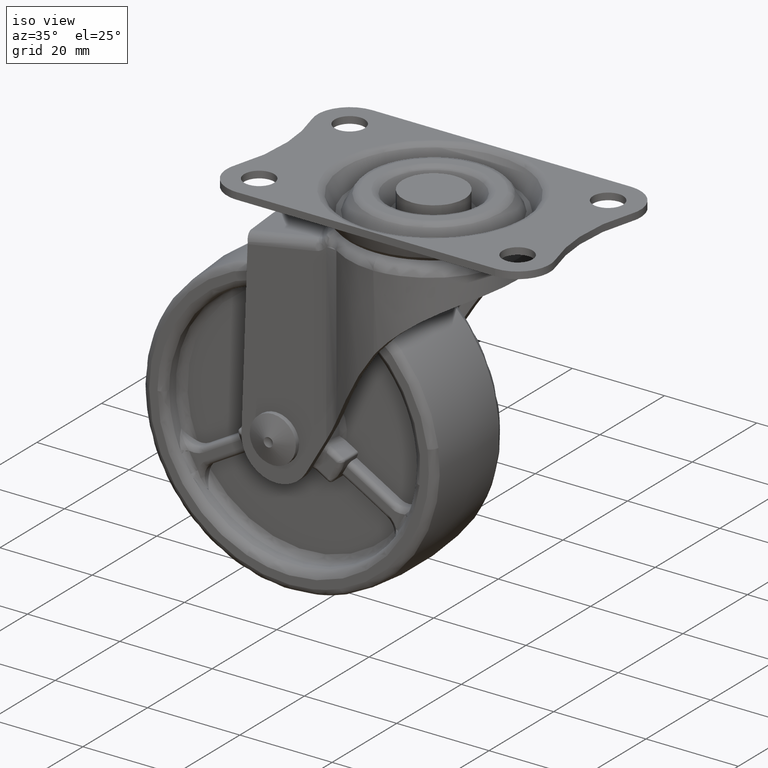
[diagram: clean part render]
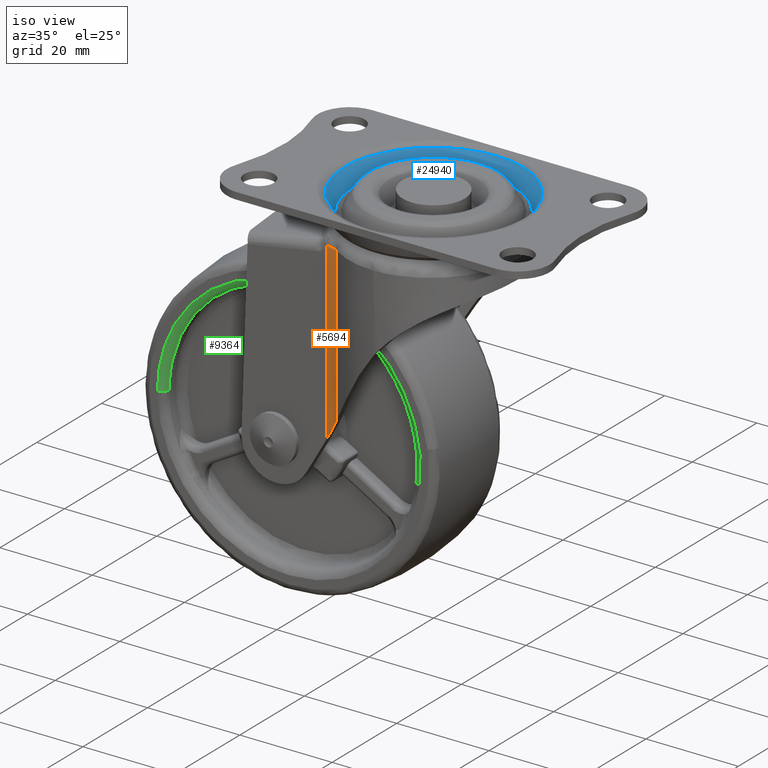
[diagram: same view with three faces highlighted in distinct colors, each labeled with its STEP entity id]
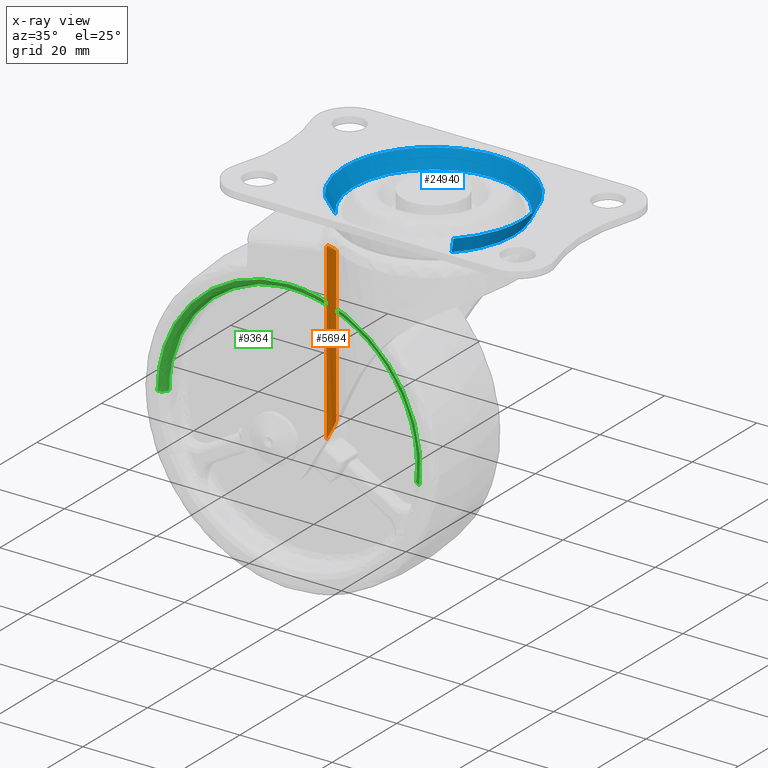
[diagram: x-ray of the same camera — body ghosted, the three highlighted faces saturated]
A machine part, iso view with three faces highlighted in distinct colors.
The next image is the same camera in x-ray (body ghosted, the three faces saturated) — at least one of them is partly hidden behind the body in this view.
Their STEP definitions:

[orange] entity #5694 — the highlighted face is a freeform B-spline surface patch.
#3430=CARTESIAN_POINT('',(-12.856621413632819,-14.506687415210759,-7.399998799999970));
#3431=VERTEX_POINT('',#3430);
#3517=CARTESIAN_POINT('',(-13.114845407450700,-14.500014999999960,-7.772795096158580));
#3518=VERTEX_POINT('',#3517);
#3528=CARTESIAN_POINT('',(-12.856621413632819,-14.506687415210759,-7.399998799999970));
#3529=CARTESIAN_POINT('',(-12.943908538273410,-14.502194692287571,-7.523361580768666));
#3530=CARTESIAN_POINT('',(-13.030004354862291,-14.499970000490400,-7.647657541697311));
#3531=CARTESIAN_POINT('',(-13.114845407450700,-14.500014999999960,-7.772795096158580));
#3532=B_SPLINE_CURVE_WITH_KNOTS('',3,(#3528,#3529,#3530,#3531),.UNSPECIFIED.,.F.,.U.,(4,4),(3.120049E-011,0.453569087634963),.UNSPECIFIED.);
#3533=EDGE_CURVE('',#3431,#3518,#3532,.T.);
#4497=CARTESIAN_POINT('',(-10.324452148758301,-15.351074718211850,-7.399998799999970));
#4498=VERTEX_POINT('',#4497);
#4499=CARTESIAN_POINT('',(-10.324452148758301,-15.351074718211850,-7.399998799999970));
#4500=CARTESIAN_POINT('',(-10.674724131833370,-15.115354828179170,-7.399998799999970));
#4501=CARTESIAN_POINT('',(-11.486159627630560,-14.708090114520440,-7.399998799999984));
#4502=CARTESIAN_POINT('',(-12.378751539321350,-14.531207283761750,-7.399998799999974));
#4503=CARTESIAN_POINT('',(-12.856621413632819,-14.506687415210759,-7.399998799999970));
#4504=B_SPLINE_CURVE_WITH_KNOTS('',3,(#4499,#4500,#4501,#4502,#4503),.UNSPECIFIED.,.F.,.U.,(4,1,4),(0.000000019463445,1.266589269198385,2.702035801086704),.UNSPECIFIED.);
#4505=EDGE_CURVE('',#4498,#3431,#4504,.T.);
#5649=CARTESIAN_POINT('',(-13.252444837934910,-14.501908718944060,-46.517800466639272));
#5650=CARTESIAN_POINT('',(-13.252444837934910,-14.501908718944060,-6.422053758333988));
#5651=CARTESIAN_POINT('',(-11.571720338933032,-14.455637847366139,-46.517800466639272));
#5652=CARTESIAN_POINT('',(-11.571720338933032,-14.455637847366139,-6.422053758333988));
#5653=CARTESIAN_POINT('',(-10.204531691264046,-15.434295620434286,-46.517800466639272));
#5654=CARTESIAN_POINT('',(-10.204531691264046,-15.434295620434286,-6.422053758333988));
#5662=(BOUNDED_SURFACE()B_SPLINE_SURFACE(1,2,((#5649,#5651,#5653),(#5650,#5652,#5654)),.UNSPECIFIED.,.F.,.F.,.U.)B_SPLINE_SURFACE_WITH_KNOTS((2,2),(3,3),(0.0,40.095746708305278),(0.0,3.272668256991335),.UNSPECIFIED.)GEOMETRIC_REPRESENTATION_ITEM()RATIONAL_B_SPLINE_SURFACE(((1.0,0.944025096349124,0.991957538020021),(1.0,0.944025096349124,0.991957538020021)))REPRESENTATION_ITEM('')SURFACE());
#5663=ORIENTED_EDGE('',*,*,#4505,.T.);
#5664=ORIENTED_EDGE('',*,*,#3533,.T.);
#5665=CARTESIAN_POINT('',(-13.114845407450780,-14.500014999999960,-45.563707743062693));
#5666=VERTEX_POINT('',#5665);
#5667=CARTESIAN_POINT('',(-13.114845407450780,-14.500014999999960,-45.563707743062693));
#5668=CARTESIAN_POINT('',(-13.114845407450700,-14.500014999999960,-7.772795096158580));
#5669=QUASI_UNIFORM_CURVE('',1,(#5667,#5668),.UNSPECIFIED.,.F.,.U.);
#5670=EDGE_CURVE('',#5666,#3518,#5669,.T.);
#5671=ORIENTED_EDGE('',*,*,#5670,.F.);
#5672=CARTESIAN_POINT('',(-10.324452148758320,-15.351074718211850,-40.741636829355500));
#5673=VERTEX_POINT('',#5672);
#5674=CARTESIAN_POINT('',(-10.324452148758290,-15.351074718211850,-40.741636829355421));
#5675=CARTESIAN_POINT('',(-11.589863730476058,-14.500014999999955,-42.928391102453411));
#5676=CARTESIAN_POINT('',(-13.114845407450760,-14.500014999999950,-45.563707743062700));
#5684=(BOUNDED_CURVE()B_SPLINE_CURVE(2,(#5674,#5675,#5676),.UNSPECIFIED.,.F.,.U.)CURVE()GEOMETRIC_REPRESENTATION_ITEM()QUASI_UNIFORM_CURVE()RATIONAL_B_SPLINE_CURVE((1.0,0.956500929523270,1.0))REPRESENTATION_ITEM(''));
#5685=EDGE_CURVE('',#5673,#5666,#5684,.T.);
#5686=ORIENTED_EDGE('',*,*,#5685,.F.);
#5687=CARTESIAN_POINT('',(-10.324452148758301,-15.351074718211850,-7.399998799999970));
#5688=CARTESIAN_POINT('',(-10.324452148758320,-15.351074718211850,-40.741636829355500));
#5689=QUASI_UNIFORM_CURVE('',1,(#5687,#5688),.UNSPECIFIED.,.F.,.U.);
#5690=EDGE_CURVE('',#4498,#5673,#5689,.T.);
#5691=ORIENTED_EDGE('',*,*,#5690,.F.);
#5692=EDGE_LOOP('',(#5663,#5664,#5671,#5686,#5691));
#5693=FACE_OUTER_BOUND('',#5692,.T.);
#5694=ADVANCED_FACE('',(#5693),#5662,.F.);

[blue] entity #24940 — the highlighted face is a freeform B-spline surface patch.
#24721=CARTESIAN_POINT('',(-15.104328417027910,-12.139677728224720,0.707998363392648));
#24722=VERTEX_POINT('',#24721);
#24737=CARTESIAN_POINT('',(13.802493565725589,-13.601607415630211,0.707998720287982));
#24738=VERTEX_POINT('',#24737);
#24750=CARTESIAN_POINT('',(12.464743854447960,-12.283327765179530,-2.799999431702651));
#24751=VERTEX_POINT('',#24750);
#24752=CARTESIAN_POINT('',(12.464743854447960,-12.283327765179530,-2.799999431702651));
#24753=CARTESIAN_POINT('',(13.802493565725589,-13.601607415630211,0.707998720287982));
#24754=QUASI_UNIFORM_CURVE('',1,(#24752,#24753),.UNSPECIFIED.,.F.,.U.);
#24755=EDGE_CURVE('',#24751,#24738,#24754,.T.);
#24770=CARTESIAN_POINT('',(-13.640405340366071,-10.963090866570431,-2.799999053926725));
#24771=VERTEX_POINT('',#24770);
#24783=CARTESIAN_POINT('',(-13.640405340366071,-10.963090866570431,-2.799999053926725));
#24784=CARTESIAN_POINT('',(-15.104328417027910,-12.139677728224720,0.707998363392648));
#24785=QUASI_UNIFORM_CURVE('',1,(#24783,#24784),.UNSPECIFIED.,.F.,.U.);
#24786=EDGE_CURVE('',#24771,#24722,#24785,.T.);
#24791=CARTESIAN_POINT('',(12.431300531040490,-12.250371187189080,-2.887699185328173));
#24792=CARTESIAN_POINT('',(24.681671718229573,0.180929343851407,-2.887699185328173));
#24793=CARTESIAN_POINT('',(12.250371187189080,12.431300531040490,-2.887699185328173));
#24794=CARTESIAN_POINT('',(-0.180929343851407,24.681671718229573,-2.887699185328173));
#24795=CARTESIAN_POINT('',(-12.431300531040490,12.250371187189080,-2.887699185328173));
#24796=CARTESIAN_POINT('',(-23.340154405281869,1.180401233811951,-2.887699185328174));
#24797=CARTESIAN_POINT('',(-13.603806815022173,-10.933675834618315,-2.887699185328173));
#24798=CARTESIAN_POINT('',(13.836773007866110,-13.635387943199470,0.797890992372309));
#24799=CARTESIAN_POINT('',(27.472160951065586,0.201385064666644,0.797890992372309));
#24800=CARTESIAN_POINT('',(13.635387943199470,13.836773007866110,0.797890992372309));
#24801=CARTESIAN_POINT('',(-0.201385064666644,27.472160951065586,0.797890992372309));
#24802=CARTESIAN_POINT('',(-13.836773007866110,13.635387943199470,0.797890992372309));
#24803=CARTESIAN_POINT('',(-25.978972808841011,1.313856413468431,0.797890992372309));
#24804=CARTESIAN_POINT('',(-15.141841875056736,-12.169828111503477,0.797890992372309));
#24812=(BOUNDED_SURFACE()B_SPLINE_SURFACE(2,1,((#24791,#24798),(#24792,#24799),(#24793,#24800),(#24794,#24801),(#24795,#24802),(#24796,#24803),(#24797,#24804)),.UNSPECIFIED.,.F.,.F.,.U.)B_SPLINE_SURFACE_WITH_KNOTS((3,2,2,3),(2,2),(0.0,32.186503354040603,64.373006708081206,93.984589793798563),(0.0,4.180574034209438),.UNSPECIFIED.)GEOMETRIC_REPRESENTATION_ITEM()RATIONAL_B_SPLINE_SURFACE(((1.0,1.0),(0.707106781186548,0.707106781186548),(1.0,1.0),(0.707106781186548,0.707106781186548),(1.0,1.0),(0.730538238691624,0.730538238691624),(0.956886118190660,0.956886118190660)))REPRESENTATION_ITEM('')SURFACE());
#24813=CARTESIAN_POINT('',(-19.378145740966652,0.0,0.707998539736828));
#24814=VERTEX_POINT('',#24813);
#24815=CARTESIAN_POINT('',(-19.378145740966652,0.0,0.707998539736828));
#24816=CARTESIAN_POINT('',(-19.378616331210129,-1.639951559914560,0.707998515914459));
#24817=CARTESIAN_POINT('',(-19.063945254704279,-4.099518370456845,0.707998480186134));
#24818=CARTESIAN_POINT('',(-17.974231453505858,-7.416964512665175,0.707998431996033));
#24819=CARTESIAN_POINT('',(-16.756660922503560,-9.873528453285079,0.707998396311338));
#24820=CARTESIAN_POINT('',(-15.660821363972220,-11.447328138598960,0.707998373449898));
#24821=CARTESIAN_POINT('',(-15.104328417027910,-12.139677728224720,0.707998363392648));
#24822=B_SPLINE_CURVE_WITH_KNOTS('',3,(#24815,#24816,#24817,#24818,#24819,#24820,#24821),.UNSPECIFIED.,.F.,.U.,(4,1,1,1,4),(3.752756E-009,4.919696950827384,7.379541211172215,10.454351369702160,13.119185879679970),.UNSPECIFIED.);
#24823=EDGE_CURVE('',#24814,#24722,#24822,.T.);
#24824=ORIENTED_EDGE('',*,*,#24823,.T.);
#24825=ORIENTED_EDGE('',*,*,#24786,.F.);
#24826=CARTESIAN_POINT('',(-17.500000000000000,0.0,-2.799999240588125));
#24827=VERTEX_POINT('',#24826);
#24828=CARTESIAN_POINT('',(-13.640405340366071,-10.963090866570431,-2.799999053926725));
#24829=CARTESIAN_POINT('',(-14.452398126520549,-9.953180646607011,-2.799999071121810));
#24830=CARTESIAN_POINT('',(-15.550674291420499,-8.223557438266639,-2.799999100570966));
#24831=CARTESIAN_POINT('',(-16.612018596304861,-5.651537511246543,-2.799999144363087));
#24832=CARTESIAN_POINT('',(-17.306996619265931,-3.085257410941046,-2.799999188057450));
#24833=CARTESIAN_POINT('',(-17.500175005860470,-1.172435854270031,-2.799999220625823));
#24834=CARTESIAN_POINT('',(-17.500000000000000,0.0,-2.799999240588125));
#24835=B_SPLINE_CURVE_WITH_KNOTS('',3,(#24828,#24829,#24830,#24831,#24832,#24833,#24834),.UNSPECIFIED.,.F.,.U.,(4,1,1,1,4),(8.888920E-009,3.887521073140568,6.108946807995011,8.330386160695442,11.847663993817431),.UNSPECIFIED.);
#24836=EDGE_CURVE('',#24771,#24827,#24835,.T.);
#24837=ORIENTED_EDGE('',*,*,#24836,.T.);
#24838=CARTESIAN_POINT('',(0.000001837333620,17.499999999999901,-2.799999240588125));
#24839=VERTEX_POINT('',#24838);
#24840=CARTESIAN_POINT('',(-17.500000000000000,0.0,-2.799999240588125));
#24841=CARTESIAN_POINT('',(-17.500046359620370,0.930612802149088,-2.799999240588125));
#24842=CARTESIAN_POINT('',(-17.339797275881480,2.935003209018313,-2.799999240588139));
#24843=CARTESIAN_POINT('',(-16.588266691050130,5.859350387421767,-2.799999240588089));
#24844=CARTESIAN_POINT('',(-15.421262871854751,8.406954515462356,-2.799999240588178));
#24845=CARTESIAN_POINT('',(-14.032757998972720,10.541121547264121,-2.799999240588084));
#24846=CARTESIAN_POINT('',(-12.187975910621470,12.693430155796889,-2.799999240588151));
#24847=CARTESIAN_POINT('',(-10.033762763770889,14.439255206798091,-2.799999240588116));
#24848=CARTESIAN_POINT('',(-7.320135107316806,15.976455525804941,-2.799999240588131));
#24849=CARTESIAN_POINT('',(-4.187600610050672,17.151905656414002,-2.799999240588109));
#24850=CARTESIAN_POINT('',(-1.503329929842773,17.500443946176802,-2.799999240588138));
#24851=CARTESIAN_POINT('',(0.000001837333620,17.499999999999901,-2.799999240588125));
#24852=B_SPLINE_CURVE_WITH_KNOTS('',3,(#24840,#24841,#24842,#24843,#24844,#24845,#24846,#24847,#24848,#24849,#24850,#24851),.UNSPECIFIED.,.F.,.U.,(4,1,1,1,1,1,1,1,1,4),(0.000000082032606,2.791838492949619,6.013209610348039,9.019838783958289,11.167431146716710,13.637160687836699,17.502727796870929,19.435565645863800,22.979076413245600,27.488979876628449),.UNSPECIFIED.);
#24853=EDGE_CURVE('',#24827,#24839,#24852,.T.);
#24854=ORIENTED_EDGE('',*,*,#24853,.T.);
#24855=CARTESIAN_POINT('',(17.500000000000000,0.0,-2.799999240588125));
#24856=VERTEX_POINT('',#24855);
#24857=CARTESIAN_POINT('',(0.000001837333620,17.499999999999901,-2.799999240588125));
#24858=CARTESIAN_POINT('',(1.395963864026903,17.500359706844598,-2.799999240588105));
#24859=CARTESIAN_POINT('',(3.400179469265473,17.258822531204729,-2.799999240588145));
#24860=CARTESIAN_POINT('',(6.558623594576914,16.311395052113880,-2.799999240588134));
#24861=CARTESIAN_POINT('',(8.953446462092105,15.142602833219611,-2.799999240588059));
#24862=CARTESIAN_POINT('',(11.099638189685830,13.580959511700559,-2.799999240588226));
#24863=CARTESIAN_POINT('',(12.811406213264281,12.000664510486271,-2.799999240588043));
#24864=CARTESIAN_POINT('',(14.366553126378911,10.117549410397780,-2.799999240588036));
#24865=CARTESIAN_POINT('',(15.900627874071400,7.522242779609292,-2.799999240588289));
#24866=CARTESIAN_POINT('',(17.151943453209888,4.187610254164214,-2.799999240587977));
#24867=CARTESIAN_POINT('',(17.500408680199040,1.503326823517029,-2.799999240588146));
#24868=CARTESIAN_POINT('',(17.500000000000000,0.0,-2.799999240588125));
#24869=B_SPLINE_CURVE_WITH_KNOTS('',3,(#24857,#24858,#24859,#24860,#24861,#24862,#24863,#24864,#24865,#24866,#24867,#24868),.UNSPECIFIED.,.F.,.U.,(4,1,1,1,1,1,1,1,1,4),(0.000000082226379,4.187767354986143,6.013209157432236,9.878855871634336,12.133846355387041,13.959225159875920,16.858470608468060,19.435564181194611,22.979074681460670,27.488977805521952),.UNSPECIFIED.);
#24870=EDGE_CURVE('',#24839,#24856,#24869,.T.);
#24871=ORIENTED_EDGE('',*,*,#24870,.T.);
#24872=CARTESIAN_POINT('',(17.500000000000000,0.0,-2.799999240588125));
#24873=CARTESIAN_POINT('',(17.500256710650550,-1.311997290656933,-2.799999261001310));
#24874=CARTESIAN_POINT('',(17.211564291221531,-3.864932878752649,-2.799999300722047));
#24875=CARTESIAN_POINT('',(16.121328909097869,-7.034679778269851,-2.799999350039696));
#24876=CARTESIAN_POINT('',(14.557894490602511,-9.865664424736261,-2.799999394086580));
#24877=CARTESIAN_POINT('',(13.311109862536251,-11.424737821213480,-2.799999418343964));
#24878=CARTESIAN_POINT('',(12.464743854447960,-12.283327765179530,-2.799999431702651));
#24879=B_SPLINE_CURVE_WITH_KNOTS('',3,(#24872,#24873,#24874,#24875,#24876,#24877,#24878),.UNSPECIFIED.,.F.,.U.,(4,1,1,1,4),(0.000000021402025,3.935938686540586,7.659100215388850,9.999401445304139,13.616206904051060),.UNSPECIFIED.);
#24880=EDGE_CURVE('',#24856,#24751,#24879,.T.);
#24881=ORIENTED_EDGE('',*,*,#24880,.T.);
#24882=ORIENTED_EDGE('',*,*,#24755,.T.);
#24883=CARTESIAN_POINT('',(19.378145740966652,0.0,0.707998539736828));
#24884=VERTEX_POINT('',#24883);
#24885=CARTESIAN_POINT('',(13.802493565725589,-13.601607415630211,0.707998720287982));
#24886=CARTESIAN_POINT('',(14.739700239411640,-12.650871857469140,0.707998707667680));
#24887=CARTESIAN_POINT('',(15.997016745252189,-11.078617073427189,0.707998686797174));
#24888=CARTESIAN_POINT('',(17.422419977118871,-8.587448186236497,0.707998653728774));
#24889=CARTESIAN_POINT('',(18.267625201094059,-6.594942177661383,0.707998627279747));
#24890=CARTESIAN_POINT('',(19.120774465298460,-3.690712522483124,0.707998588728274));
#24891=CARTESIAN_POINT('',(19.378538743225690,-1.531356491750213,0.707998560064437));
#24892=CARTESIAN_POINT('',(19.378145740966652,0.0,0.707998539736828));
#24893=B_SPLINE_CURVE_WITH_KNOTS('',3,(#24885,#24886,#24887,#24888,#24889,#24890,#24891,#24892),.UNSPECIFIED.,.F.,.U.,(4,1,1,1,1,4),(0.000000020944192,4.004970966987571,6.007469519643708,8.598900397478488,10.483596482045391,15.077534266959830),.UNSPECIFIED.);
#24894=EDGE_CURVE('',#24738,#24884,#24893,.T.);
#24895=ORIENTED_EDGE('',*,*,#24894,.T.);
#24896=CARTESIAN_POINT('',(7.086251074618428,18.036007824851559,0.707998549013760));
#24897=VERTEX_POINT('',#24896);
#24898=CARTESIAN_POINT('',(19.378145740966652,0.0,0.707998539736828));
#24899=CARTESIAN_POINT('',(19.378218624047800,1.026400436612047,0.707998539736773));
#24900=CARTESIAN_POINT('',(19.233860984177131,2.837664951431997,0.707998539845723));
#24901=CARTESIAN_POINT('',(18.561841436132401,5.848507173581801,0.707998540352909));
#24902=CARTESIAN_POINT('',(17.485561785782480,8.554336197207936,0.707998541165198));
#24903=CARTESIAN_POINT('',(15.706067485232721,11.508688247717560,0.707998542508218));
#24904=CARTESIAN_POINT('',(13.687512223747380,13.855444146658151,0.707998544031659));
#24905=CARTESIAN_POINT('',(10.740461951758141,16.275183910519431,0.707998546255856));
#24906=CARTESIAN_POINT('',(8.547509384357349,17.462306403102989,0.707998547910917));
#24907=CARTESIAN_POINT('',(7.086251074618428,18.036007824851559,0.707998549013760));
#24908=B_SPLINE_CURVE_WITH_KNOTS('',3,(#24898,#24899,#24900,#24901,#24902,#24903,#24904,#24905,#24906,#24907),.UNSPECIFIED.,.F.,.U.,(4,1,1,1,1,1,1,4),(0.000000033146520,3.079199834401475,5.433909892065064,9.237671885731128,11.773456252095791,15.758332712035941,18.475300162452989,23.184683460701478),.UNSPECIFIED.);
#24909=EDGE_CURVE('',#24884,#24897,#24908,.T.);
#24910=ORIENTED_EDGE('',*,*,#24909,.T.);
#24911=CARTESIAN_POINT('',(-17.097167974215381,9.121369399756141,0.707998544903165));
#24912=VERTEX_POINT('',#24911);
#24913=CARTESIAN_POINT('',(7.086251074618428,18.036007824851559,0.707998549013760));
#24914=CARTESIAN_POINT('',(5.787807117417134,18.546430189225148,0.707998547586514));
#24915=CARTESIAN_POINT('',(3.507621134831959,19.168159783960260,0.707998545415146));
#24916=CARTESIAN_POINT('',(0.462890265742807,19.425946872780500,0.707998543213974));
#24917=CARTESIAN_POINT('',(-2.071724301282061,19.315873286326461,0.707998541777673));
#24918=CARTESIAN_POINT('',(-4.249512311934508,18.951894040810600,0.707998540872188));
#24919=CARTESIAN_POINT('',(-6.579566270376746,18.276489488836280,0.707998540252292));
#24920=CARTESIAN_POINT('',(-9.086768043384788,17.212237507608691,0.707998539996927));
#24921=CARTESIAN_POINT('',(-11.548916071636050,15.656578232428499,0.707998540368985));
#24922=CARTESIAN_POINT('',(-13.767332241342420,13.722807409289530,0.707998541353286));
#24923=CARTESIAN_POINT('',(-15.582633266823580,11.642336449918860,0.707998542766380));
#24924=CARTESIAN_POINT('',(-16.630619366360850,9.995995483955010,0.707998544125308));
#24925=CARTESIAN_POINT('',(-17.097167974215381,9.121369399756141,0.707998544903165));
#24926=B_SPLINE_CURVE_WITH_KNOTS('',3,(#24913,#24914,#24915,#24916,#24917,#24918,#24919,#24920,#24921,#24922,#24923,#24924,#24925),.UNSPECIFIED.,.F.,.U.,(4,1,1,1,1,1,1,1,1,1,4),(0.000000066525210,4.185442290620706,7.049168691684717,9.141898536732558,11.785359722186371,13.657790816341331,16.411317022170230,19.935923495931220,22.359087098853639,25.222835310797841,28.196673707515579),.UNSPECIFIED.);
#24927=EDGE_CURVE('',#24897,#24912,#24926,.T.);
#24928=ORIENTED_EDGE('',*,*,#24927,.T.);
#24929=CARTESIAN_POINT('',(-17.097167974215381,9.121369399756141,0.707998544903165));
#24930=CARTESIAN_POINT('',(-17.539573710205119,8.292201415190105,0.707998543901132));
#24931=CARTESIAN_POINT('',(-18.323519492178072,6.524004710159906,0.707998542125520));
#24932=CARTESIAN_POINT('',(-19.164355575557099,3.462410453279461,0.707998540221057));
#24933=CARTESIAN_POINT('',(-19.378289968099558,1.236597033317873,0.707998539736500));
#24934=CARTESIAN_POINT('',(-19.378145740966652,0.0,0.707998539736828));
#24935=B_SPLINE_CURVE_WITH_KNOTS('',3,(#24929,#24930,#24931,#24932,#24933,#24934),.UNSPECIFIED.,.F.,.U.,(4,1,1,4),(8.702898E-009,2.819433133988910,5.787250571738325,9.497028690946026),.UNSPECIFIED.);
#24936=EDGE_CURVE('',#24912,#24814,#24935,.T.);
#24937=ORIENTED_EDGE('',*,*,#24936,.T.);
#24938=EDGE_LOOP('',(#24824,#24825,#24837,#24854,#24871,#24881,#24882,#24895,#24910,#24928,#24937));
#24939=FACE_OUTER_BOUND('',#24938,.T.);
#24940=ADVANCED_FACE('',(#24939),#24812,.F.);

[green] entity #9364 — the highlighted face is a freeform B-spline surface patch.
#9218=CARTESIAN_POINT('',(4.412712792368393,-10.496388482712499,-51.302734669569027));
#9219=CARTESIAN_POINT('',(4.604026481268000,-10.496388482712497,-49.656906331397060));
#9220=CARTESIAN_POINT('',(4.604026481268001,-10.496388482712499,-47.999996000000010));
#9221=CARTESIAN_POINT('',(4.604026481268005,-10.496388482712497,-19.395969518732016));
#9222=CARTESIAN_POINT('',(-24.0,-10.496388482712499,-19.395969518731999));
#9223=CARTESIAN_POINT('',(-52.604026481268001,-10.496388482712497,-19.395969518732002));
#9224=CARTESIAN_POINT('',(-52.604026481268001,-10.496388482712499,-47.999996000000003));
#9225=CARTESIAN_POINT('',(2.703585513134143,-10.616004249260582,-51.104063011653352));
#9226=CARTESIAN_POINT('',(2.883390992769161,-10.616004249260577,-49.557237191483161));
#9227=CARTESIAN_POINT('',(2.883390992769161,-10.616004249260580,-47.999996000000017));
#9228=CARTESIAN_POINT('',(2.883390992769166,-10.616004249260579,-21.116605007230852));
#9229=CARTESIAN_POINT('',(-23.999999999999989,-10.616004249260580,-21.116605007230838));
#9230=CARTESIAN_POINT('',(-50.883390992769158,-10.616004249260579,-21.116605007230834));
#9231=CARTESIAN_POINT('',(-50.883390992769165,-10.616004249260580,-47.999995999999996));
#9232=CARTESIAN_POINT('',(2.823040727230704,-8.895413636686925,-51.117948674657846));
#9233=CARTESIAN_POINT('',(3.003650544622349,-8.895413636686918,-49.564203318928378));
#9234=CARTESIAN_POINT('',(3.003650544622351,-8.895413636686921,-47.999996000000010));
#9235=CARTESIAN_POINT('',(3.003650544622353,-8.895413636686920,-20.996345455377668));
#9236=CARTESIAN_POINT('',(-23.999999999999996,-8.895413636686921,-20.996345455377657));
#9237=CARTESIAN_POINT('',(-51.003650544622346,-8.895413636686920,-20.996345455377636));
#9238=CARTESIAN_POINT('',(-51.003650544622353,-8.895413636686921,-47.999995999999989));
#9246=(BOUNDED_SURFACE()B_SPLINE_SURFACE(2,2,((#9218,#9225,#9232),(#9219,#9226,#9233),(#9220,#9227,#9234),(#9221,#9228,#9235),(#9222,#9229,#9236),(#9223,#9230,#9237),(#9224,#9231,#9238)),.UNSPECIFIED.,.F.,.F.,.U.)B_SPLINE_SURFACE_WITH_KNOTS((3,2,2,3),(3,3),(0.0,3.791412610470240,51.184115438551707,98.576818266633182),(0.0,2.733556342804873),.UNSPECIFIED.)GEOMETRIC_REPRESENTATION_ITEM()RATIONAL_B_SPLINE_SURFACE(((0.870831809919692,0.569876296320330,0.866007996426050),(0.888744147605105,0.581598211553931,0.883821111993890),(0.910068355261767,0.595552870011418,0.905027198103471),(0.643515505348883,0.421119472940184,0.639950868937225),(0.910068355261767,0.595552870011418,0.905027198103471),(0.643515505348883,0.421119472940184,0.639950868937225),(0.910068355261767,0.595552870011418,0.905027198103471)))REPRESENTATION_ITEM('')SURFACE());
#9247=CARTESIAN_POINT('',(4.309381704082955,-10.499999999999870,-51.290726535654841));
#9248=VERTEX_POINT('',#9247);
#9249=CARTESIAN_POINT('',(-24.0,-10.499999999999860,-19.499995999999999));
#9250=VERTEX_POINT('',#9249);
#9251=CARTESIAN_POINT('',(4.309381704082955,-10.499999999999870,-51.290726535654841));
#9252=CARTESIAN_POINT('',(4.562754093582614,-10.499999999999840,-49.114890927783769));
#9253=CARTESIAN_POINT('',(4.563598730918709,-10.499999999999950,-45.460801672558240));
#9254=CARTESIAN_POINT('',(3.635841636756370,-10.499999999999760,-40.653783437222224));
#9255=CARTESIAN_POINT('',(2.162997361936657,-10.499999999999901,-36.384715677575947));
#9256=CARTESIAN_POINT('',(0.256278765614224,-10.499999999999851,-32.841403460470872));
#9257=CARTESIAN_POINT('',(-2.283672832446797,-10.499999999999870,-29.420121721277258));
#9258=CARTESIAN_POINT('',(-4.767257672954857,-10.499999999999851,-26.843770744165010));
#9259=CARTESIAN_POINT('',(-7.775885941030682,-10.499999999999890,-24.482738520397611));
#9260=CARTESIAN_POINT('',(-10.513181211389570,-10.499999999999760,-22.828868653626369));
#9261=CARTESIAN_POINT('',(-13.354319270316720,-10.499999999999790,-21.509315854874480));
#9262=CARTESIAN_POINT('',(-16.435136816702620,-10.499999999999901,-20.444719304376370));
#9263=CARTESIAN_POINT('',(-20.057121890009910,-10.499999999999851,-19.682135824950748));
#9264=CARTESIAN_POINT('',(-22.685705033314932,-10.499999999999860,-19.499944133860240));
#9265=CARTESIAN_POINT('',(-24.0,-10.499999999999860,-19.499995999999999));
#9266=B_SPLINE_CURVE_WITH_KNOTS('',3,(#9251,#9252,#9253,#9254,#9255,#9256,#9257,#9258,#9259,#9260,#9261,#9262,#9263,#9264,#9265),.UNSPECIFIED.,.F.,.U.,(4,1,1,1,1,1,1,1,1,1,1,1,4),(0.000000071201974,6.571500145046379,10.889921867101460,14.645083189467110,20.090044845557362,22.906441718963752,27.412526125910141,30.792194787975038,34.359585410954978,36.988193631550402,40.180067459563297,44.122983706749807,48.065868984872537),.UNSPECIFIED.);
#9267=EDGE_CURVE('',#9248,#9250,#9266,.T.);
#9268=ORIENTED_EDGE('',*,*,#9267,.T.);
#9269=CARTESIAN_POINT('',(-52.499999997144222,-10.499999999999870,-47.999996000000003));
#9270=VERTEX_POINT('',#9269);
#9271=CARTESIAN_POINT('',(-24.0,-10.499999999999860,-19.499995999999999));
#9272=CARTESIAN_POINT('',(-25.515575800084068,-10.499999999999860,-19.499900577046500));
#9273=CARTESIAN_POINT('',(-28.255233663697911,-10.499999999999890,-19.719050243774092));
#9274=CARTESIAN_POINT('',(-31.957207799734629,-10.499999999999870,-20.562316351564771));
#9275=CARTESIAN_POINT('',(-34.980416022767812,-10.499999999999810,-21.644068841059831));
#9276=CARTESIAN_POINT('',(-37.978886390414672,-10.499999999999890,-23.084761861775672));
#9277=CARTESIAN_POINT('',(-40.639678573633937,-10.499999999999851,-24.781179225186062));
#9278=CARTESIAN_POINT('',(-43.398165519193107,-10.499999999999860,-27.030865999391700));
#9279=CARTESIAN_POINT('',(-45.676352077192249,-10.499999999999870,-29.380043727464859));
#9280=CARTESIAN_POINT('',(-47.850310092198150,-10.499999999999870,-32.274031425151790));
#9281=CARTESIAN_POINT('',(-49.400980461614878,-10.499999999999860,-34.953536122439971));
#9282=CARTESIAN_POINT('',(-50.725034374362522,-10.499999999999851,-37.940574935710352));
#9283=CARTESIAN_POINT('',(-51.633430305875272,-10.499999999999879,-40.777722407012782));
#9284=CARTESIAN_POINT('',(-52.327962272060262,-10.499999999999870,-44.269378480763521));
#9285=CARTESIAN_POINT('',(-52.500068857864882,-10.499999999999719,-46.601005579659571));
#9286=CARTESIAN_POINT('',(-52.499999997144222,-10.499999999999870,-47.999996000000003));
#9287=B_SPLINE_CURVE_WITH_KNOTS('',3,(#9271,#9272,#9273,#9274,#9275,#9276,#9277,#9278,#9279,#9280,#9281,#9282,#9283,#9284,#9285,#9286),.UNSPECIFIED.,.F.,.U.,(4,1,1,1,1,1,1,1,1,1,1,1,1,4),(0.000000069441739,4.546722487746628,8.219068648021619,11.366816357134381,14.164805235654390,18.186909918933349,20.810060678315399,24.832105912141550,27.979825787382438,31.652207099156371,34.100449000636338,37.772802682675483,40.570799467077570,44.767765538037111),.UNSPECIFIED.);
#9288=EDGE_CURVE('',#9250,#9270,#9287,.T.);
#9289=ORIENTED_EDGE('',*,*,#9288,.T.);
#9290=CARTESIAN_POINT('',(-51.000000000000199,-9.000000546694171,-47.999996000000131));
#9291=VERTEX_POINT('',#9290);
#9292=CARTESIAN_POINT('',(-52.499999997144222,-10.499999999999870,-47.999996000000003));
#9293=CARTESIAN_POINT('',(-52.303604028878652,-10.500204774849150,-47.999996000000067));
#9294=CARTESIAN_POINT('',(-52.009282801154178,-10.441289814754040,-47.999995999999889));
#9295=CARTESIAN_POINT('',(-51.606845117470968,-10.226235879296789,-47.999996000000117));
#9296=CARTESIAN_POINT('',(-51.315481256620693,-9.955552471240800,-47.999996000000003));
#9297=CARTESIAN_POINT('',(-51.066044750685172,-9.527553091788533,-47.999996000000060));
#9298=CARTESIAN_POINT('',(-50.999785618435169,-9.196386171451177,-47.999996000000223));
#9299=CARTESIAN_POINT('',(-51.000000000000199,-9.000000546694171,-47.999996000000131));
#9300=B_SPLINE_CURVE_WITH_KNOTS('',3,(#9292,#9293,#9294,#9295,#9296,#9297,#9298,#9299),.UNSPECIFIED.,.F.,.U.,(4,1,1,1,1,4),(0.000000286690615,0.589064449549412,0.883618520076984,1.362178116374803,1.767190151967134,2.356253431101047),.UNSPECIFIED.);
#9301=EDGE_CURVE('',#9270,#9291,#9300,.T.);
#9302=ORIENTED_EDGE('',*,*,#9301,.T.);
#9303=CARTESIAN_POINT('',(-25.990503326144601,-8.999999999999860,-21.073468253025151));
#9304=VERTEX_POINT('',#9303);
#9305=CARTESIAN_POINT('',(-25.990503326144601,-8.999999999999860,-21.073468253025151));
#9306=CARTESIAN_POINT('',(-26.935235801205469,-8.999999986175942,-21.143303524995812));
#9307=CARTESIAN_POINT('',(-29.235636177764700,-8.999999956964647,-21.435617812349179));
#9308=CARTESIAN_POINT('',(-32.453269067360772,-8.999999931759085,-22.274601846993399));
#9309=CARTESIAN_POINT('',(-36.017120053482742,-8.999999922827598,-23.725561392756511));
#9310=CARTESIAN_POINT('',(-39.080300259145922,-8.999999934192742,-25.495922262326211));
#9311=CARTESIAN_POINT('',(-41.736561865912357,-8.999999963894553,-27.576437849374749));
#9312=CARTESIAN_POINT('',(-44.082479575205703,-9.000000005982571,-29.849584474620620));
#9313=CARTESIAN_POINT('',(-46.102803626474397,-9.000000062216728,-32.356455852383853));
#9314=CARTESIAN_POINT('',(-47.774426953397032,-9.000000133216844,-35.103086710745643));
#9315=CARTESIAN_POINT('',(-49.246972118013197,-9.000000220231474,-38.195008520781073));
#9316=CARTESIAN_POINT('',(-50.600473535794329,-9.000000350596755,-42.421442030448212));
#9317=CARTESIAN_POINT('',(-51.000393545993909,-9.000000473904342,-46.000067223735194));
#9318=CARTESIAN_POINT('',(-51.000000000000199,-9.000000546694171,-47.999996000000131));
#9319=B_SPLINE_CURVE_WITH_KNOTS('',3,(#9305,#9306,#9307,#9308,#9309,#9310,#9311,#9312,#9313,#9314,#9315,#9316,#9317,#9318),.UNSPECIFIED.,.F.,.U.,(4,1,1,1,1,1,1,1,1,1,1,4),(0.000000067157664,2.841940076546209,6.947049628014618,9.946924025771196,14.367784706302750,17.525545663110272,20.051781139856189,24.156795238175111,27.156667265866680,29.682881599806489,34.419537503001337,40.419247603041967),.UNSPECIFIED.);
#9320=EDGE_CURVE('',#9304,#9291,#9319,.T.);
#9321=ORIENTED_EDGE('',*,*,#9320,.F.);
#9322=CARTESIAN_POINT('',(-22.009485798377650,-8.999999999999860,-21.073469056980802));
#9323=VERTEX_POINT('',#9322);
#9324=CARTESIAN_POINT('',(-22.009485798377650,-8.999999999999860,-21.073469056980802));
#9325=CARTESIAN_POINT('',(-23.334081700237618,-8.999999999999872,-20.975517927317082));
#9326=CARTESIAN_POINT('',(-24.665907350066959,-8.999999999999798,-20.975494055416380));
#9327=CARTESIAN_POINT('',(-25.990503326144601,-8.999999999999860,-21.073468253025151));
#9328=B_SPLINE_CURVE_WITH_KNOTS('',3,(#9324,#9325,#9326,#9327),.UNSPECIFIED.,.F.,.U.,(4,4),(5.604828E-010,3.984636054970693),.UNSPECIFIED.);
#9329=EDGE_CURVE('',#9323,#9304,#9328,.T.);
#9330=ORIENTED_EDGE('',*,*,#9329,.F.);
#9331=CARTESIAN_POINT('',(2.819414247197420,-9.000000546694178,-51.117530191830880));
#9332=VERTEX_POINT('',#9331);
#9333=CARTESIAN_POINT('',(2.819414247197420,-9.000000546694178,-51.117530191830880));
#9334=CARTESIAN_POINT('',(2.983173665130479,-9.000000498906783,-49.709588557982521));
#9335=CARTESIAN_POINT('',(3.077627908857478,-9.000000415490462,-47.152027575434040));
#9336=CARTESIAN_POINT('',(2.738969762680822,-9.000000318097385,-43.931616123392558));
#9337=CARTESIAN_POINT('',(2.078880555752990,-9.000000227813297,-40.765604142857470));
#9338=CARTESIAN_POINT('',(1.016651861250531,-9.000000143703337,-37.582640333328243));
#9339=CARTESIAN_POINT('',(-0.734203478427835,-9.000000062697486,-34.137274844062127));
#9340=CARTESIAN_POINT('',(-2.836660227440092,-9.000000000644892,-31.100695913102040));
#9341=CARTESIAN_POINT('',(-5.023542649245412,-8.999999960692600,-28.710717303930618));
#9342=CARTESIAN_POINT('',(-7.677277725804802,-8.999999931078436,-26.400147271484911));
#9343=CARTESIAN_POINT('',(-10.560071070433279,-8.999999917412714,-24.468430975747388));
#9344=CARTESIAN_POINT('',(-13.949426172291750,-8.999999922655114,-22.863221576870981));
#9345=CARTESIAN_POINT('',(-17.674121625930749,-8.999999945851428,-21.644065680709190));
#9346=CARTESIAN_POINT('',(-20.369712382713448,-8.999999976485935,-21.194494481125538));
#9347=CARTESIAN_POINT('',(-22.009485798377650,-8.999999999999860,-21.073469056980802));
#9348=B_SPLINE_CURVE_WITH_KNOTS('',3,(#9333,#9334,#9335,#9336,#9337,#9338,#9339,#9340,#9341,#9342,#9343,#9344,#9345,#9346,#9347),.UNSPECIFIED.,.F.,.U.,(4,1,1,1,1,1,1,1,1,1,1,1,4),(0.000000074840180,4.252292767842583,7.654174791478319,9.695284707867941,13.947624711632880,17.689658309408799,21.261625608408920,25.003601720010568,27.384923607995990,31.807350677083189,35.379314949048762,38.611093191669873,43.543754350236732),.UNSPECIFIED.);
#9349=EDGE_CURVE('',#9332,#9323,#9348,.T.);
#9350=ORIENTED_EDGE('',*,*,#9349,.F.);
#9351=CARTESIAN_POINT('',(4.309381704082955,-10.499999999999870,-51.290726535654841));
#9352=CARTESIAN_POINT('',(4.138709315134133,-10.500121792019209,-51.270887287743129));
#9353=CARTESIAN_POINT('',(3.846236244719090,-10.448815808011799,-51.236889722072220));
#9354=CARTESIAN_POINT('',(3.440307653734586,-10.243145198087630,-51.189703894296500));
#9355=CARTESIAN_POINT('',(3.114644228667715,-9.938677413198827,-51.151848225518002));
#9356=CARTESIAN_POINT('',(2.876570306008244,-9.503082194875770,-51.124174109030037));
#9357=CARTESIAN_POINT('',(2.819314366693969,-9.171819530153305,-51.117518581552240));
#9358=CARTESIAN_POINT('',(2.819414247197420,-9.000000546694178,-51.117530191830880));
#9359=B_SPLINE_CURVE_WITH_KNOTS('',3,(#9351,#9352,#9353,#9354,#9355,#9356,#9357,#9358),.UNSPECIFIED.,.F.,.U.,(4,1,1,1,1,4),(0.000000286690886,0.515429271761816,0.883618520277888,1.362178116688779,1.840826807364285,2.356253431638949),.UNSPECIFIED.);
#9360=EDGE_CURVE('',#9248,#9332,#9359,.T.);
#9361=ORIENTED_EDGE('',*,*,#9360,.F.);
#9362=EDGE_LOOP('',(#9268,#9289,#9302,#9321,#9330,#9350,#9361));
#9363=FACE_OUTER_BOUND('',#9362,.T.);
#9364=ADVANCED_FACE('',(#9363),#9246,.T.);